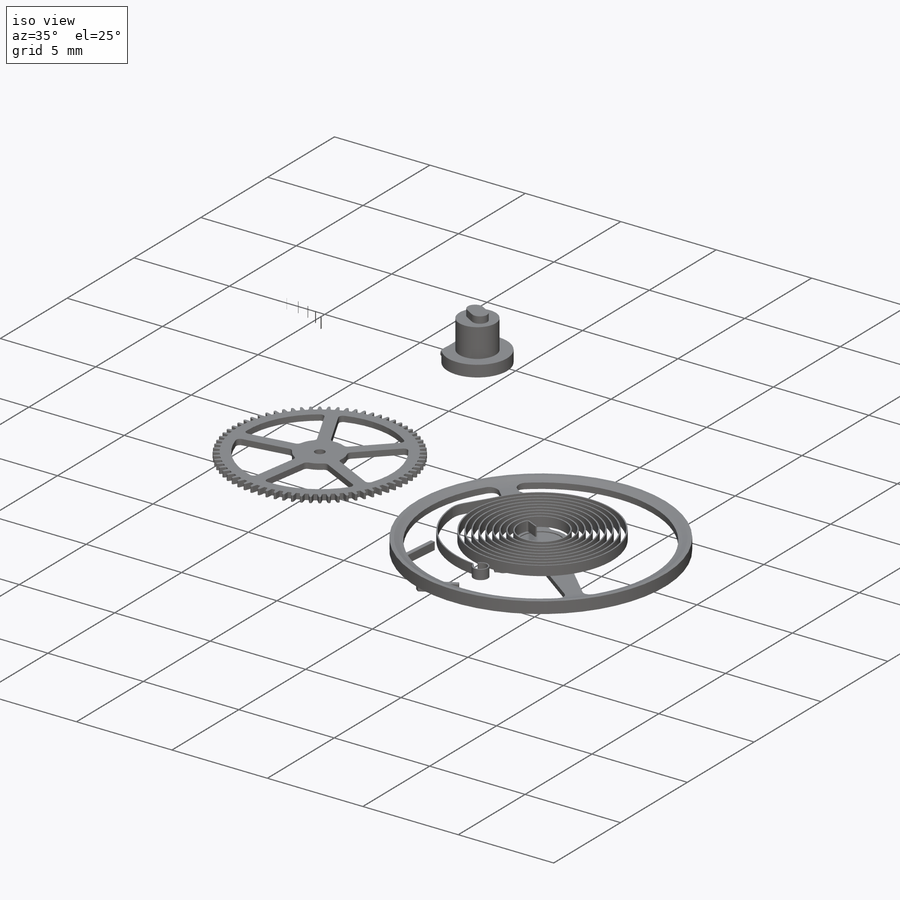
[diagram: iso view]
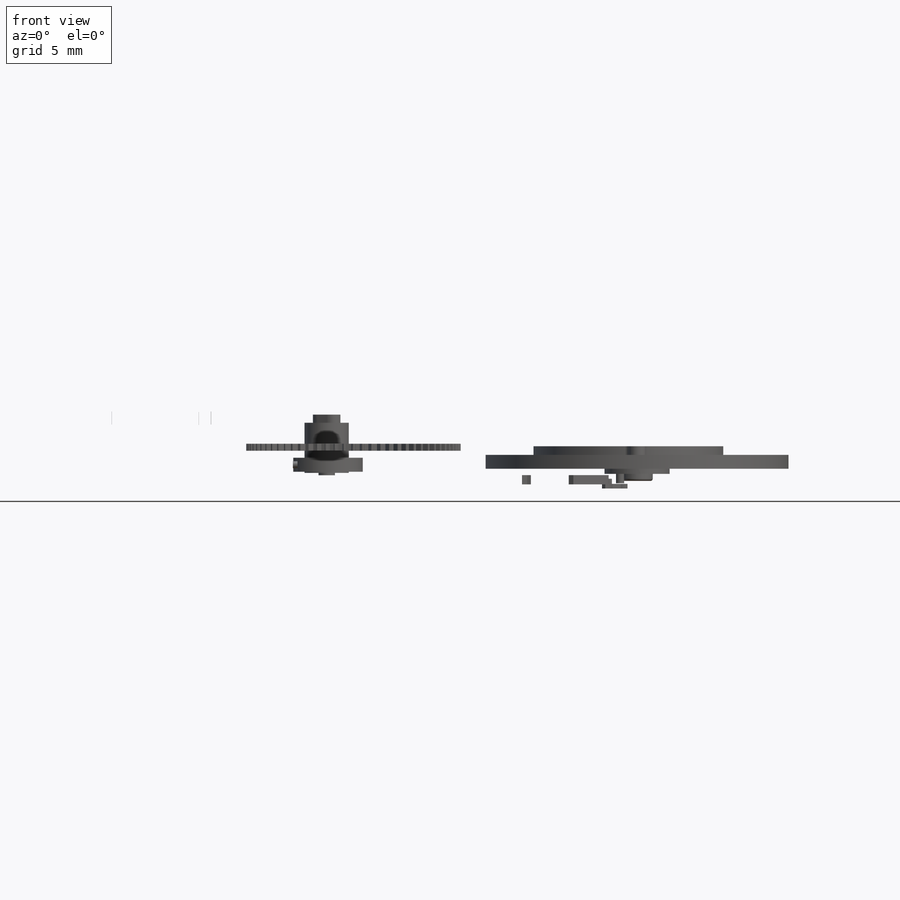
[diagram: front view]
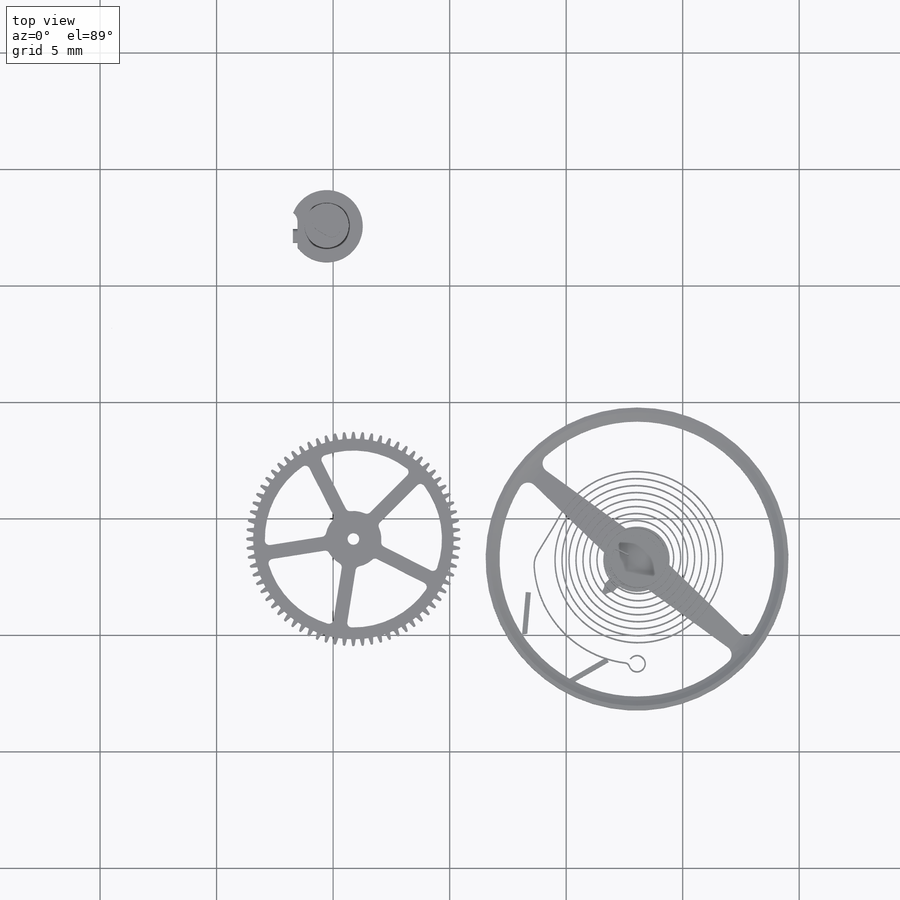
[diagram: top view]
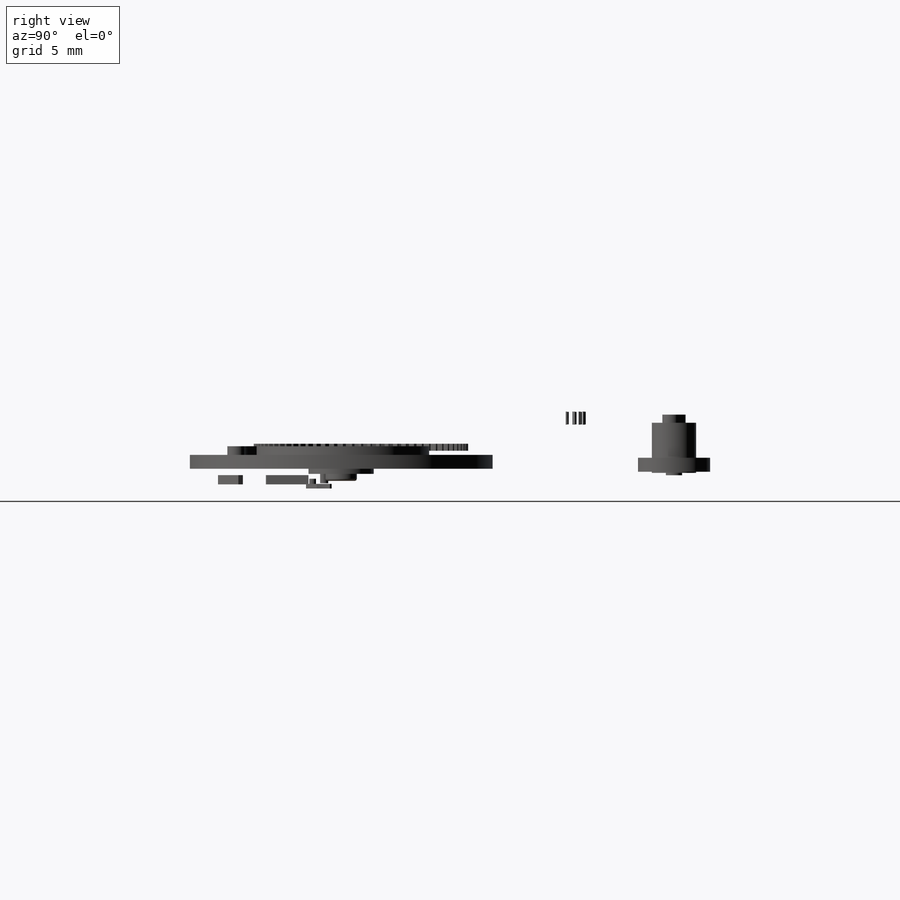
[diagram: right view]
SOLIDWORKS PART (.sldprt)
format: sldprt  version: not decoded by parser v0  size: 23,639,552 bytes
history: native  units: mm
features: sketch x279, extrude x171, fillet x92, cut_extrude x66, plane x30, pattern_circular x25, revolve x14, cut_revolve x11, chamfer x11, helix x4, material x1, boolean_combine x1, surface_op x1 + 3 further entries (+42 scaffold rows collapsed; 31 parser-record rows omitted)
feature tree (782):
  scaffold x42  (default folders/planes/origin — collapsed)
  material  "Material <not specified>"
  plane  "top"  Offset=1.25mm
  plane  "base"  Offset=4.4mm
  plane  "mid"
  sketch  "Sketch17"  dims[D1=36.0mm]
  parser-record x31  (decoder bookkeeping rows leaked as tree rows — omitted from the tree; the rows remain in map.json)
  sketch  "Sketch1"  dims[D1=12.0mm]
  extrude  "Boss-Extrude1"  Depth=0.3mm
  sketch  "Sketch2"  dims[c1.D2=3.0mm c1.D1=0.3mm c2.D2=~0.148279mm c3.D2=~95.83543deg c4.D2=~0.148279mm c5.D2=80.0deg c5.D3=0.1mm]
  extrude  "Boss-Extrude2"  [1 undecoded]
  fillet  "Fillet1"  [1 undecoded]
  pattern_circular  "CirPattern1"  Count=96 Angle=3.75deg
  sketch  "Sketch3"  dims[D1=0.8mm]
  extrude  "Boss-Extrude3"  [1 undecoded]
  sketch  "Sketch12"  dims[D1=0.4mm]
  sketch  "Sketch4"  dims[D1=0.15mm]
  cut_extrude  "Cut-Extrude1"  Depth=0.1mm
  sketch  "Sketch13"  dims[c1.D2=2.6mm c1.D3=1.2mm c2.D2=8.0mm c2.D3=1.8mm c2.D1=~1.117928mm c3.D1=55.0deg c3.D4=0.7mm c3.D5=~1.14671mm c4.D5=~72.860734deg c5.D5=1.4mm c6.D5=72.0deg c6.D2=0.6mm c6.D3=0.3mm c6.D1=2.0]
  cut_extrude  "Cut-Extrude3"  [1 undecoded]
  fillet  "Fillet5"  Radius=0.2mm
  pattern_circular  "CirPattern7"  Count=5 Angle=72deg
  plane  "Plane1"  Offset=0.2mm
  sketch  "Sketch5"  dims[c1.D2=1.6mm c1.D1=~5.131791mm c2.D1=35.0deg c2.D3=0.4mm]
  extrude  "Boss-Extrude4"  Depth=0.1mm
  "Axis2"
  sketch  "Sketch6"  dims[c1.D1=0.3mm c1.D2=0.193mm c2.D2=80.0deg c2.D3=0.1mm c2.D4=1.0mm c3.D4=31.0deg]
  extrude  "Boss-Extrude5"  [1 undecoded]
  fillet  "Fillet2"  [1 undecoded]
  pattern_circular  "CirPattern4"  Count=15 Angle=360deg
  plane  "Plane17"  Offset=0.025mm
  sketch  "Sketch7"  dims[D1=8.6mm]
  extrude  "Boss-Extrude6"  Depth=0.3mm
  sketch  "Sketch8"  dims[c1.D1=0.3mm c1.D2=0.1mm c1.D3=~0.446457mm c2.D3=80.0deg]
  extrude  "Boss-Extrude7"  [1 undecoded]
  fillet  "Fillet3"  [1 undecoded]
  pattern_circular  "CirPattern5"  Count=72 Angle=360deg
  sketch  "Sketch14"  dims[c1.D1=1.7mm c1.D2=2.1mm c2.D1=~1.722959mm c3.D1=45.0deg c3.D4=0.6mm c3.D5=2.1mm c4.D5=72.0deg c4.D2=0.5mm c4.D1=0.4mm c4.D3=2.0]
  cut_extrude  "Cut-Extrude4"  [1 undecoded]
  fillet  "Fillet6"  Radius=0.2mm
  pattern_circular  "CirPattern8"  Count=5 Angle=72deg
  sketch  "Sketch11"  dims[D1=0.5mm]
  cut_extrude  "Cut-Extrude2"  [1 undecoded]
  sketch  "Sketch85"  dims[D1=0.025mm]
  extrude  "Boss-Extrude40"  Depth=0.025mm
  sketch  "Sketch9"  dims[D1=0.4mm]
  extrude  "Boss-Extrude8"  Depth=0.1mm
  sketch  "Sketch10"  dims[c1.D1=~0.049349mm c2.D1=80.0deg c2.D2=0.1mm c2.D3=0.3mm c2.D4=~0.192864mm c3.D4=51.0deg]
  extrude  "Boss-Extrude9"  [1 undecoded]
  fillet  "Fillet4"  [1 undecoded]
  pattern_circular  "CirPattern6"  Count=42 Angle=8.571429deg
  sketch  "Sketch15"  dims[D1=0.025mm]
  extrude  "Boss-Extrude11"  Depth=0.1mm
  sketch  "Sketch16"  dims[D1=0.2mm]
  cut_extrude  "Cut-Extrude5"  Depth=0.2mm
  sketch  "Sketch18"  dims[c1.D1=~2.233312mm c1.D2=1.05mm c2.D1=0.3mm c2.D2=0.4mm c2.D4=0.925mm c3.D4=72.0deg c3.D5=0.4mm c3.D3=2.0]
  cut_extrude  "Cut-Extrude6"  [1 undecoded]
  fillet  "Fillet7"  Radius=0.2mm
  pattern_circular  "CirPattern9"  Count=5 Angle=72deg
  sketch  "Sketch198"  dims[D1=0.1mm]
  extrude  "Boss-Extrude102"  Depth=0.025mm
  plane  "Plane2"  Offset=1mm
  sketch  "Sketch19"  dims[c1.D2=13.0mm c1.D4=~9.064542mm c1.D6=~4.518704mm c1.D9=2.5mm c2.D6=0.4mm c2.D7=0.4mm c2.D1=~9.98035mm c3.D1=50.0deg c3.D3=10.5mm c3.D4=0.6mm c3.D5=4.85mm c4.D5=40.0deg c4.D6=0.3mm c4.D7=1.6mm c4.D8=0.8mm c5.D5=~4.174027mm c6.D5=120.0deg c7.D5=~4.174027mm c8.D5=100.0deg c9.D5=5.25mm c10.D5=135.0deg c11.D5=~4.110614mm c12.D5=135.0deg c12.D10=8.5mm c13.D10=9.0deg c14.D10=~5.413748mm c15.D10=4.0deg]
  extrude  "Boss-Extrude12"  Depth=0.6mm
  "Axis3"
  pattern_circular  "CirPattern12"  Count=2 Angle=180deg
  boolean_combine  "Combine1"
  plane  "Plane3"
  sketch  "Sketch21"  dims[c1.D3=1.5mm c1.D1=0.12mm c1.D2=0.2mm c2.D1=360.0deg]
  plane  "Plane5"  Offset=0.05mm
  sketch  "Sketch22"  dims[D1=2.2mm]
  helix  "Helix/Spiral1"  Pitch=0.3mm
  sketch  "Sketch25"  dims[D1=9.0mm]
  helix  "Helix/Spiral2"  Pitch=0.3mm
  sketch  "Sketch23"  dims[c1.D3=0.7mm c1.D1=~1.909527mm c2.D1=60.0deg c2.D2=0.7mm c3.D1=~0.25848mm c4.D1=70.0deg]
  sketch  "Sketch27"  dims[c1.D3=0.1mm c1.D4=0.3mm c2.D3=0.1mm c2.D4=0.2mm c2.D5=~0.259573mm c3.D5=125.0deg c3.D1=0.0mm c3.D2=0.0mm c4.D1=0.0mm c4.D2=0.0mm]
  surface_op  "Surface-Extrude1"
  fillet  "Fillet38"  Radius=0.1mm
  fillet  "Fillet39"  Radius=0.2mm
  fillet  "Fillet8"  Radius=10mm
  fillet  "Fillet9"  Radius=1mm
  sketch  "Sketch93"  dims[D1=2.05mm]
  cut_extrude  "Cut-Extrude20"  Depth=0.05mm
  sketch  "Sketch26"  dims[c1.D1=2.0mm c1.D3=1.0mm c1.D2=0.15mm c2.D3=0.05mm c2.D1=0.05mm c2.D2=~0.394878mm c3.D2=~0.051129deg c4.D2=0.025mm c4.D1=~0.074421mm c5.D1=90.0deg c6.D1=0.025mm]
  extrude  "Boss-Extrude13"  Depth=0.6mm
  sketch  "Sketch229"
  extrude  "Boss-Extrude123"  Depth=0.15mm
  sketch  "Sketch33"  dims[c1.D1=2.31mm c2.D1=45.0deg]
  plane  "Plane7"
  sketch  "Sketch31"  dims[D1=2.0mm]
  cut_extrude  "Cut-Extrude8"  Depth=0.1mm
  sketch  "Sketch32"  dims[c1.D1=0.5mm c1.D2=0.05mm c1.D3=0.15mm c1.D4=0.6mm c1.D5=0.2mm c1.D6=0.3mm c2.D3=0.2mm c2.D4=0.025mm c2.D5=1.4mm c3.D4=0.025mm c3.D3=0.4mm c3.D1=0.25mm c3.D6=0.025mm c4.D3=0.025mm c4.D4=0.4mm]
  revolve  "Revolve2"  Angle=360deg
  sketch  "Sketch34"  dims[D1=0.4mm D2=1.03mm]
  cut_extrude  "Cut-Extrude9"  Depth=0.1mm
  sketch  "Sketch41"  dims[D3=0.1mm D1=0.3mm D2=0.025mm]
  revolve  "Revolve3"  Angle=360deg
  sketch  "Sketch35"  dims[D1=0.025mm]
  extrude  "Boss-Extrude14"  Depth=0.025mm
  plane  "Plane8"  Offset=0.1mm
  sketch  "Sketch39"  dims[c1.D1=5.6mm c1.D3=3.7mm c1.D2=8.0mm c1.D4=0.24mm c1.D5=0.06mm c1.D6=~1.963736mm c2.D6=35.0deg c2.D7=0.15mm c3.D6=~1.813495mm c4.D6=28.0deg c4.D7=~0.601074mm c5.D7=13.0deg c5.D8=0.9mm c5.D9=~1.897846mm c6.D9=8.0deg c6.D8=0.25mm c7.D8=90.0deg c7.D10=0.8mm c7.D11=~0.775102mm c8.D11=19.0deg c8.D10=0.06mm c9.D10=65.0deg c9.D3=0.75mm c9.D8=0.2mm c10.D8=71.0deg c10.D6=~2.00824mm c11.D6=42.0deg]
  extrude  "Boss-Extrude17"  Depth=0.3mm
  sketch  "Sketch42"  dims[c1.D1=1.0mm c1.D2=~2.922429mm c1.D5=0.5mm c2.D1=0.5mm c2.D2=0.3mm c2.D3=~14.910986mm c3.D3=25.0deg c3.D4=0.3mm c3.D1=0.3mm]
  cut_extrude  "Cut-Extrude10"  [1 undecoded]
  sketch  "Sketch40"  dims[D1=0.0mm]
  extrude  "Boss-Extrude18"  [1 undecoded]
  fillet  "Fillet12"  Radius=1mm
  pattern_circular  "CirPattern13"  Count=14 Angle=360deg
  fillet  "Fillet13"  Radius=0.15mm
  sketch  "Sketch43"  dims[c1.D1=0.22mm c1.D2=~1.835601mm c2.D2=15.0deg c2.D3=~1.589677mm c3.D3=65.0deg c3.D4=1.8mm c3.D5=3.95mm c3.D6=2.15mm]
  sketch  "Sketch44"  dims[c1.D1=~0.275573mm c2.D1=75.0deg c2.D2=~2.232251mm c3.D2=50.0deg c3.D3=4.3mm c3.D4=2.3mm]
  extrude  "Boss-Extrude19"  Depth=0.35mm
  extrude  "Boss-Extrude20"  [1 undecoded]
  sketch  "Sketch36"  dims[c1.D3=0.6mm c1.D8=0.7mm c1.D15=1.8mm c1.D16=0.8mm c2.D3=0.6mm c2.D4=1.3mm c2.D9=1.3mm c2.D10=2.6mm c2.D1=0.5mm c2.D2=0.05mm c3.D4=0.2mm c3.D6=~3.304063mm c4.D6=33.0deg c4.D7=3.8mm c4.D9=~0.57313mm c5.D9=25.0deg c5.D10=0.25mm c5.D11=~0.754803mm c6.D11=65.0deg c6.D12=0.8mm c7.D12=25.0deg c7.D13=0.2mm c7.D14=0.2mm c7.D17=0.2mm c7.D18=1.0mm c7.D5=0.4mm c7.D2=0.2mm c7.D6=0.1mm c7.D19=~0.070905mm c8.D19=38.0deg c8.D2=0.005mm c8.D3=3.9mm c8.D5=~0.676336mm c9.D5=60.0deg c9.D6=0.2mm c9.D7=0.2mm c10.D5=0.2mm]
  extrude  "Boss-Extrude21"  Depth=0.3mm
  sketch  "Sketch37"  dims[c1.D2=1.7mm c1.D7=2.0mm c1.D12=0.5mm c1.D1=0.025mm c1.D3=~0.353553mm c2.D3=120.0deg c2.D4=0.1mm c2.D5=~0.178063mm c3.D5=~1.236526deg c4.D5=0.15mm c4.D6=0.4mm c4.D8=0.3mm c4.D9=~0.450001mm c5.D9=~0.142497deg c6.D9=0.05mm c6.D10=0.4mm c6.D11=0.7mm c6.D12=0.25mm c6.D1=0.0mm]
  extrude  "Boss-Extrude15"  [1 undecoded]
  sketch  "Sketch230"  dims[D1=0.6mm]
  cut_extrude  "Cut-Extrude30"  [1 undecoded]
  fillet  "Fillet14"  Radius=0.5mm
  fillet  "Fillet15"  Radius=0.5mm
  sketch  "Sketch45"  dims[D1=0.3mm D2=0.3mm]
  cut_extrude  "Cut-Extrude11"  Depth=0.1mm
  plane  "Plane9"  Offset=0.025mm
  sketch  "Sketch47"  dims[D1=0.005mm]
  extrude  "Boss-Extrude22"  Depth=0.005mm
  sketch  "Sketch48"  dims[c1.D1=0.5mm c1.D7=0.9mm c1.D2=0.3mm c1.D3=0.5mm c1.D4=~0.217924mm c2.D4=90.0deg c3.D4=0.2mm c3.D5=0.5mm c3.D6=0.1mm c3.D7=1.1mm]
  extrude  "Boss-Extrude23"  Depth=0.2mm
  plane  "Plane10"  Offset=0.2mm
  sketch  "Sketch49"  dims[c1.D2=13.0mm c1.D3=10.0mm c1.D1=~8.64819mm c2.D1=35.0deg c2.D3=9.2mm]
  plane  "Plane11"
  sketch  "Sketch50"  dims[D1=0.9mm D2=0.2mm D3=2.5mm D4=0.25mm D5=5.0mm]
  revolve  "Revolve4"  Angle=360deg
  sketch  "Sketch51"  dims[c1.D3=5.5mm c1.D1=0.5mm c1.D2=0.15mm c2.D3=0.15mm c3.D3=80.0deg]
  extrude  "Boss-Extrude24"  [1 undecoded]
  fillet  "Fillet16"  [1 undecoded]
  pattern_circular  "CirPattern14"  Count=72 Angle=360deg
  sketch  "Sketch52"  dims[c1.D3=4.1mm c1.D2=~8.009058mm c2.D3=3.0mm c2.D1=9.6mm c3.D1=60.0deg c3.D2=0.5mm c3.D3=0.7mm c3.D4=1.0mm c3.D5=1.2mm c4.D4=1.3mm c4.D2=0.7mm c5.D4=9.6mm c6.D4=120.0deg c6.D5=9.6mm c7.D5=120.0deg c7.D6=1.6mm c7.D7=1.1mm]
  cut_extrude  "Cut-Extrude12"  [1 undecoded]
  fillet  "Fillet17"  Radius=0.2mm
  fillet  "Fillet18"  Radius=0.2mm
  sketch  "Sketch54"  dims[D1=0.2mm]
  cut_extrude  "Cut-Extrude13"  Depth=0.1mm
  sketch  "Sketch55"  dims[c1.D1=0.8mm c1.D2=0.4mm c2.D1=0.5mm]
  cut_extrude  "Cut-Extrude14"  [1 undecoded]
  sketch  "Sketch57"  dims[D1=0.0mm D2=0.1mm]
  cut_extrude  "Cut-Extrude15"  Depth=0.1mm
  sketch  "Sketch199"  dims[c1.D1=0.15mm c1.D2=0.02mm c1.D3=~0.712031mm c2.D3=~11.896266deg c2.D1=~0.727659mm c3.D1=12.0deg c3.D2=1.0mm]
  cut_revolve  "Cut-Revolve14"  Angle=360deg
  sketch  "Sketch58"  dims[D1=0.025mm D2=0.15mm D3=0.25mm]
  revolve  "Revolve5"  Angle=360deg
  plane  "Plane12"  Offset=0.1mm
  sketch  "Sketch61"  dims[c1.D2=~11.646613mm c1.D1=0.4mm c2.D2=0.3mm]
  extrude  "Boss-Extrude27"  Depth=0.8mm
  sketch  "Sketch62"  dims[D1=0.0mm]
  extrude  "Boss-Extrude28"  Depth=0.4mm
  sketch  "Sketch200"  dims[c1.D1=~13.378142mm c1.D2=4.0mm c1.D4=17.0mm c1.D5=17.0mm c1.D6=17.0mm c1.D7=~20.43735mm c1.D8=~19.63735mm c2.D1=1.0mm c2.D3=~13.873882mm c3.D3=10.0deg c3.D5=0.5mm c3.D6=0.5mm c3.D7=0.9mm c3.D8=2.0mm c3.D9=~0.346484mm c4.D9=~3.483675deg c5.D9=1.0mm]
  cut_extrude  "Cut-Extrude27"  [1 undecoded]
  plane  "Plane13"
  sketch  "Sketch63"  dims[c1.D1=0.5mm c1.D2=0.15mm c1.D3=~0.505686mm c2.D3=80.0deg]
  extrude  "Boss-Extrude29"  [1 undecoded]
  fillet  "Fillet19"  [1 undecoded]
  pattern_circular  "CirPattern15"  Count=84 Angle=360deg
  sketch  "Sketch202"  dims[c1.D1=~1.673204mm c2.D1=12.0deg c2.D2=1.0mm]
  cut_revolve  "Cut-Revolve15"  Angle=360deg
  sketch  "Sketch64"  dims[D1=0.8mm]
  cut_extrude  "Cut-Extrude16"  Depth=0.1mm
  sketch  "Sketch59"  dims[D1=0.025mm]
  extrude  "Boss-Extrude25"  Depth=0.05mm
  sketch  "Sketch60"  dims[D1=0.05mm]
  extrude  "Boss-Extrude26"  Depth=0.05mm
  sketch  "Sketch65"  dims[D1=0.05mm]
  extrude  "Boss-Extrude30"  Depth=0.1mm
  sketch  "Sketch66"  dims[c1.D1=~3.254767mm c1.D4=0.5mm c2.D1=0.6mm c2.D2=0.3mm c2.D3=0.2mm]
  extrude  "Boss-Extrude31"  Depth=0.6mm
  sketch  "Sketch67"  dims[D3=0.15mm D1=0.5mm D2=0.3mm]
  extrude  "Boss-Extrude32"  Depth=0.2mm
  sketch  "Sketch69"  dims[D1=6.0mm]
  helix  "Helix/Spiral3"  Pitch=0.25mm
  sketch  "Sketch70"  dims[D1=4.0mm]
  helix  "Helix/Spiral4"  Pitch=1.33mm
  plane  "Plane15"
  sketch  "Sketch73"  dims[c1.D1=0.1mm c1.D2=~3.304392mm c2.D2=30.0deg c2.D1=0.1mm c2.D3=0.25mm]
  sketch  "Sketch74"  dims[D1=0.7mm]
  fillet  "Fillet20"  Radius=1mm
  "Thicken2"
  sketch  "Sketch75"  dims[D1=0.005mm]
  cut_extrude  "Cut-Extrude17"  [1 undecoded]
  sketch  "Sketch77"  dims[c1.D1=0.025mm c1.D2=0.2mm c1.D3=~0.174564mm c2.D3=5.0deg c3.D3=0.0mm]
  extrude  "Boss-Extrude33"  Depth=0.7mm
  sketch  "Sketch78"  dims[D1=0.7mm]
  extrude  "Boss-Extrude34"  Depth=0.6mm
  sketch  "Sketch79"  dims[c1.D1=~0.119675mm c2.D1=~112.025517deg c3.D1=~0.157309mm c4.D1=80.0deg c4.D2=0.15mm c4.D3=0.5mm c4.D4=0.8mm c5.D4=26.0deg]
  extrude  "Boss-Extrude35"  [1 undecoded]
  fillet  "Fillet21"  [1 undecoded]
  pattern_circular  "CirPattern16"  Count=11 Angle=360deg
  sketch  "Sketch80"  dims[D1=0.025mm]
  extrude  "Boss-Extrude36"  Depth=0.025mm
  plane  "Plane16"  Offset=0.05mm
  sketch  "Sketch81"  dims[D1=1.1mm]
  extrude  "Boss-Extrude37"  Depth=0.6mm
  sketch  "Sketch82"  dims[c1.D4=1.0mm c1.D1=0.7mm c2.D1=50.0deg c2.D2=0.3mm c2.D3=~0.112242mm c3.D3=80.0deg c3.D4=0.1mm]
  extrude  "Boss-Extrude38"  [1 undecoded]
  fillet  "Fillet22"  [1 undecoded]
  pattern_circular  "CirPattern17"  Count=10 Angle=36deg
  sketch  "Sketch83"  dims[D1=0.025mm]
  extrude  "Boss-Extrude39"  Depth=0.05mm
  sketch  "Sketch86"  dims[c1.D2=6.2mm c1.D3=7.0mm c1.D1=0.4mm c2.D2=0.55mm c3.D2=65.0deg c3.D3=~4.572334mm c4.D3=~184.255716deg c5.D3=1.0mm c6.D3=5.0deg c6.D2=~5.048553mm c7.D2=13.0deg c7.D3=5.5145mm c8.D3=~134.84121deg c9.D3=5.5mm]
  extrude  "Boss-Extrude41"  Depth=0.3mm
  sketch  "Sketch87"  dims[c1.D3=3.4mm c1.D1=3.1mm c2.D1=28.5deg c2.D2=0.3mm c2.D3=~0.044927mm c3.D3=80.0deg c3.D4=0.1mm]
  extrude  "Boss-Extrude42"  [1 undecoded]
  fillet  "Fillet23"  [1 undecoded]
  pattern_circular  "CirPattern18"  Count=65 Angle=360deg
  sketch  "Sketch88"  dims[c1.D2=0.9mm c1.D3=~2.476025mm c1.D1=3.1mm c2.D1=80.0deg c2.D3=0.5mm c2.D5=0.6mm c2.D6=~1.600821mm c3.D6=72.0deg c3.D4=2.0]
  cut_extrude  "Cut-Extrude18"  [1 undecoded]
  fillet  "Fillet24"  Radius=0.2mm
  pattern_circular  "CirPattern19"  Count=5 Angle=72deg
  sketch  "Sketch89"  dims[D1=0.5mm]
  cut_extrude  "Cut-Extrude19"  [1 undecoded]
  plane  "Plane18"  Offset=0.1mm
  sketch  "Sketch90"  dims[D1=0.4mm]
  extrude  "Boss-Extrude43"  Depth=0.05mm
  sketch  "Sketch91"  dims[c1.D1=0.1mm c1.D2=0.1mm c2.D2=80.0deg c2.D3=~0.267096mm c3.D3=14.0deg c3.D4=0.3mm]
  extrude  "Boss-Extrude44"  [1 undecoded]
  fillet  "Fillet25"  [1 undecoded]
  pattern_circular  "CirPattern20"  Count=15 Angle=360deg
  sketch  "Sketch92"  dims[D1=0.025mm]
  extrude  "Boss-Extrude45"  Depth=0.05mm
  sketch  "Sketch94"  dims[D1=6.5mm D2=0.7mm]
  sketch  "Sketch95"  dims[D1=2.2mm D2=0.2mm]
  revolve  "Revolve6"  Angle=360deg
  sketch  "Sketch96"  dims[c1.D2=3.5mm c1.D1=0.5mm c2.D2=0.15mm c2.D3=~0.082903mm c3.D3=80.0deg c3.D4=3.0mm c4.D4=46.5deg]
  extrude  "Boss-Extrude46"  [1 undecoded]
  fillet  "Fillet26"  [1 undecoded]
  pattern_circular  "CirPattern21"  Count=37 Angle=9.72973deg
  sketch  "Sketch203"  dims[c1.D1=~0.872155mm c2.D1=12.0deg c2.D2=1.0mm]
  cut_revolve  "Cut-Revolve16"  Angle=360deg
  sketch  "Sketch103"  dims[D1=2.2mm]
  cut_extrude  "Cut-Extrude21"  Depth=0.1mm
  sketch  "Sketch104"  dims[D2=0.4mm D3=0.5mm D1=0.0mm]
  cut_extrude  "Cut-Extrude22"  Depth=0.1mm
  sketch  "Sketch106"  dims[D1=0.025mm D2=0.15mm D3=0.25mm]
  revolve  "Revolve10"  Angle=360deg
  plane  "Plane33"  Offset=16mm
  sketch  "Sketch204"  dims[D1=4.0mm D2=0.5mm]
  extrude  "Boss-Extrude103"  Depth=0.7mm
  sketch  "Sketch205"  dims[c1.D1=0.15mm c1.D2=1.5mm c2.D2=8.0deg c2.D3=0.15mm c3.D3=80.0deg]
  extrude  "Boss-Extrude104"  [1 undecoded]
  fillet  "Fillet40"  [1 undecoded]
  pattern_circular  "CirPattern22"  Count=20 Angle=18deg
  plane  "Plane34"
  sketch  "Sketch206"  dims[c1.D1=~0.873981mm c2.D1=12.0deg c2.D2=1.0mm c2.D3=0.2mm]
  cut_revolve  "Cut-Revolve17"  Angle=360deg
  sketch  "Sketch207"  dims[D1=1.2mm]
  extrude  "Boss-Extrude105"  Depth=2mm
  plane  "Plane35"  Offset=0.1mm
  sketch  "Sketch208"  dims[c1.D1=7.0mm c1.D4=2.2mm c1.D5=0.5mm c1.D2=3.5mm c2.D2=20.0deg c2.D3=~2.340157mm c3.D3=125.0deg]
  extrude  "Boss-Extrude106"  Depth=0.3mm
  sketch  "Sketch210"  dims[c1.D1=0.4mm c1.D2=~0.046968mm c2.D2=80.0deg c2.D3=0.15mm c2.D4=0.4mm c3.D4=96.0deg]
  extrude  "Boss-Extrude107"  [1 undecoded]
  fillet  "Fillet41"  [1 undecoded]
  pattern_circular  "CirPattern23"  Count=44 Angle=8.181818deg
  sketch  "Sketch213"  dims[D1=1.4mm D2=0.2mm]
  extrude  "Boss-Extrude110"  Depth=0.5mm
  sketch  "Sketch214"  dims[D1=0.0mm]
  cut_extrude  "Cut-Extrude28"  [1 undecoded]
  plane  "Plane36"  Offset=0.1mm
  sketch  "Sketch211"  dims[D1=1.8mm]
  extrude  "Boss-Extrude108"  Depth=0.4mm
  sketch  "Sketch212"  dims[c1.D1=0.15mm c1.D2=0.15mm c2.D2=~254.149713deg c3.D2=0.15mm c4.D2=80.0deg c4.D3=0.4mm]
  extrude  "Boss-Extrude109"  [1 undecoded]
  fillet  "Fillet42"  [1 undecoded]
  pattern_circular  "CirPattern24"  Count=12 Angle=30deg
  sketch  "Sketch215"  dims[D1=0.05mm]
  extrude  "Boss-Extrude111"  Depth=0.3mm
  sketch  "Sketch231"  dims[D1=0.6mm]
  cut_extrude  "Cut-Extrude31"  Depth=0.2mm
  sketch  "Sketch232"  dims[D1=0.025mm]
  extrude  "Boss-Extrude124"  Depth=0.025mm
  sketch  "Sketch216"  dims[c1.D3=1.4mm c1.D1=0.5mm c1.D2=3.5mm c2.D2=45.0deg]
  extrude  "Boss-Extrude112"  Depth=0.1mm
  sketch  "Sketch217"  dims[c1.D1=0.4mm c1.D2=0.15mm c1.D3=~0.118789mm c2.D3=80.0deg c2.D4=0.65mm c3.D4=54.0deg]
  extrude  "Boss-Extrude113"  [1 undecoded]
  fillet  "Fillet43"  [1 undecoded]
  pattern_circular  "CirPattern25"  Count=10 Angle=36deg
  sketch  "Sketch218"  dims[D1=0.5mm]
  extrude  "Boss-Extrude114"  [1 undecoded]
  sketch  "Sketch219"  dims[c1.D1=0.4mm c1.D2=3.3mm c2.D2=135.0deg c2.D3=0.15mm c2.D4=~0.106066mm c3.D4=80.0deg]
  extrude  "Boss-Extrude115"  [1 undecoded]
  fillet  "Fillet44"  [1 undecoded]
  pattern_circular  "CirPattern26"  Count=36 Angle=10deg
  sketch  "Sketch220"  dims[c1.D1=~2.851885mm c1.D4=2.5mm c1.D5=0.8mm c2.D1=0.4mm c2.D2=0.1mm c2.D3=0.5mm c2.D4=~0.122068mm]
  extrude  "Boss-Extrude116"  Depth=0.4mm
  sketch  "Sketch221"  dims[c1.D1=0.4mm c1.D2=0.4mm c2.D2=60.0deg c2.D3=~0.201632mm c3.D3=80.0deg c3.D4=0.15mm]
  extrude  "Boss-Extrude117"  [1 undecoded]
  fillet  "Fillet45"  [1 undecoded]
  pattern_circular  "CirPattern27"  Count=15 Angle=24deg
  sketch  "Sketch223"  dims[c1.D4=1.65mm c1.D1=~0.281675mm c2.D1=66.0deg c2.D2=0.4mm c2.D3=0.15mm c2.D4=~0.06101mm c3.D4=80.0deg]
  extrude  "Boss-Extrude118"  [1 undecoded]
  fillet  "Fillet46"  [1 undecoded]
  pattern_circular  "CirPattern28"  Count=15 Angle=24deg
  sketch  "Sketch240"  dims[D1=1.5mm]
  cut_extrude  "Cut-Extrude33"  Depth=0.1mm
  plane  "Plane37"  Offset=12.75mm
  sketch  "Sketch224"  dims[D1=1.8mm D2=0.8mm]
  extrude  "Boss-Extrude119"  Depth=0.4mm
  sketch  "Sketch225"  dims[c1.D1=0.75mm c2.D1=178.5deg c2.D2=0.15mm c2.D3=~0.149949mm c3.D3=90.0deg c4.D3=~0.149949mm c5.D3=80.0deg c5.D4=0.4mm]
  extrude  "Boss-Extrude120"  [1 undecoded]
  fillet  "Fillet47"  [1 undecoded]
  pattern_circular  "CirPattern29"  Count=12 Angle=360deg
  sketch  "Sketch226"  dims[D1=2.4mm]
  extrude  "Boss-Extrude121"  Depth=1.3mm
  sketch  "Sketch227"  dims[D1=0.3mm]
  cut_extrude  "Cut-Extrude29"  [1 undecoded]
  sketch  "Sketch228"  dims[D1=0.025mm]
  extrude  "Boss-Extrude122"  Depth=0.1mm
  sketch  "Sketch126"  dims[c1.D6=2.5mm c1.D9=2.5mm c1.D1=0.1mm c1.D2=~0.158523mm c2.D2=80.0deg c2.D3=0.15mm c2.D4=~9.384197mm c3.D4=12.0deg c3.D5=13.05mm c3.D7=1.5mm c4.D7=30.0deg c4.D8=1.5mm c5.D8=5.0deg c5.D1=~0.466127mm c6.D1=121.0deg c6.D10=0.6mm c6.D4=13.4mm c7.D4=5.2deg c7.D6=~0.449186mm c8.D6=145.0deg c9.D6=0.5mm c9.D7=1.35mm c9.D8=2.0387mm c10.D8=150.0deg c10.D10=~2.023537mm c11.D10=33.0deg]
  extrude  "Boss-Extrude58"  Depth=0.4mm
  fillet  "Fillet34"  [1 undecoded]
  sketch  "Sketch127"  dims[D1=1.9mm]
  cut_extrude  "Cut-Extrude23"  Depth=0.25mm
  fillet  "Fillet35"  Radius=0.1mm
  plane  "Plane26"
  sketch  "Sketch128"  dims[c1.D1=0.025mm c1.D2=0.15mm c1.D3=0.25mm c2.D1=0.025mm]
  revolve  "Revolve11"  Angle=360deg
  sketch  "Sketch241"  dims[D1=0.025mm]
  extrude  "Boss-Extrude130"  Depth=0.025mm
  sketch  "Sketch242"  dims[D1=0.025mm]
  extrude  "Boss-Extrude131"  Depth=0.05mm
  sketch  "Sketch243"  dims[c1.D1=~35.141092mm c1.D2=~1.269689mm c1.D3=~1.927067mm c1.D4=~2.068081mm c1.D5=1.7mm c1.D9=1.3mm c1.D10=1.0mm c1.D16=4.3mm c1.D18=~2.659234mm c2.D2=0.8mm c2.D4=2.2mm c2.D5=1.4mm c2.D16=2.7mm c2.D22=2.7mm c2.D1=0.1mm c3.D2=0.025mm c3.D3=0.5mm c3.D4=0.7mm c3.D6=17.9mm c4.D6=65.0deg c4.D7=~7.363193mm c5.D7=87.0deg c5.D8=6.0mm c5.D10=0.5mm c5.D11=16.0mm c5.D12=~0.859925mm c6.D12=40.0deg c6.D13=0.8mm c6.D14=~2.452759mm c7.D14=86.0deg c7.D15=0.6mm c7.D18=1.0mm c7.D2=~1.191255mm c8.D2=~1.145061deg c9.D2=0.6mm c9.D14=~2.224277mm c10.D14=20.0deg c10.D5=0.9mm c10.D20=0.7mm c10.D21=1.0mm c11.D21=~137.340416deg c12.D21=1.0mm c13.D21=135.0deg c13.D22=0.5mm c14.D22=62.0deg c14.D17=0.7mm c14.D19=0.7mm]
  extrude  "Boss-Extrude132"  Depth=0.1mm
  sketch  "Sketch244"  dims[c1.D1=2.2mm c1.D4=1.5mm c1.D8=0.71mm c1.D2=1.4mm c1.D3=~0.518742mm c2.D3=150.0deg c3.D3=0.8mm c3.D4=~0.306315mm c4.D4=20.0deg c5.D4=~0.225314mm c6.D4=50.0deg c6.D5=0.8mm c6.D2=0.8mm c6.D6=1.3mm c6.D7=1.2mm c6.D9=0.7mm c6.D10=0.0mm]
  extrude  "Boss-Extrude133"  [1 undecoded]
  sketch  "Sketch246"  dims[c1.D1=0.7mm c1.D2=~16.707941mm c1.D3=14.8mm c1.D4=17.2mm c1.D5=0.5mm c1.D8=~16.002605mm c2.D3=8.4mm c2.D4=17.2mm c2.D2=1.8mm c2.D5=0.4mm c2.D6=6.0mm c2.D8=0.5mm c2.D9=1.2mm c3.D8=1.0mm c3.D10=~0.289183mm c4.D10=40.0deg c4.D11=1.8mm c4.D12=5.1mm c4.D4=0.5mm c4.D7=0.5mm]
  extrude  "Boss-Extrude134"  [1 undecoded]
  sketch  "Sketch247"  dims[c1.D1=0.6mm c1.D4=0.67mm c1.D6=~1.582469mm c2.D4=0.1mm c2.D6=0.08mm c2.D2=0.0mm c2.D3=0.0mm c2.D5=0.0mm]
  extrude  "Boss-Extrude135"  [1 undecoded]
  fillet  "Fillet54"  Radius=1mm
  fillet  "Fillet55"  Radius=0.4mm
  fillet  "Fillet56"  Radius=0.3mm
  fillet  "Fillet58"  Radius=0.1mm
  sketch  "Sketch248"  dims[D1=1.25mm D2=1.5mm]
  cut_extrude  "Cut-Extrude34"  Depth=0.2mm
  sketch  "Sketch249"  dims[c1.D1=~1.080321mm c1.D2=~1.053766mm c1.D3=~1.096009mm c2.D1=0.05mm c2.D2=0.025mm c2.D3=0.025mm]
  extrude  "Boss-Extrude136"  Depth=0.025mm
  sketch  "Sketch250"  dims[D1=0.0mm]
  extrude  "Boss-Extrude137"  [1 undecoded]
  fillet  "Fillet59"  Radius=0.05mm
  fillet  "Fillet60"  Radius=0.05mm
  fillet  "Fillet61"  Radius=0.05mm
  sketch  "Sketch251"  dims[c1.D1=0.7mm c2.D1=40.0deg c2.D2=0.15mm]
  cut_extrude  "Cut-Extrude35"  Depth=0.15mm
  sketch  "Sketch252"  dims[c1.D1=~2.78094mm c1.D3=~9.229975mm c2.D1=0.1mm c2.D2=0.1mm c2.D3=0.1mm c2.D4=0.15mm c3.D3=0.4mm c3.D4=9.3mm c4.D3=0.1mm c4.D5=~0.632473mm c5.D5=112.0deg]
  extrude  "Boss-Extrude138"  [1 undecoded]
  sketch  "Sketch253"  dims[D1=0.05mm]
  extrude  "Boss-Extrude139"  [1 undecoded]
  sketch  "Sketch254"  dims[c1.D4=~1.414576mm c1.D2=1.6mm c1.D1=~2.129815mm c2.D1=13.0deg c2.D2=3.3mm c2.D3=3.3mm c3.D3=80.0deg c3.D4=1.6mm c4.D4=~72.011965deg c5.D4=1.6mm c6.D4=5.0deg c6.D5=5.7mm c7.D4=1.4mm c8.D4=105.0deg c8.D6=0.2mm]
  extrude  "Boss-Extrude140"  [1 undecoded]
  fillet  "Fillet62"  Radius=0.2mm
  sketch  "Sketch255"  dims[c1.D1=~0.399084mm c1.D3=~16.870286mm c1.D5=~8.647408mm c1.D7=~15.945482mm c2.D1=0.05mm c2.D2=0.1mm c2.D3=1.0mm c2.D4=0.2mm c2.D5=0.2mm c2.D6=~1.258171mm c3.D6=133.0deg c3.D7=1.0mm]
  extrude  "Boss-Extrude141"  [1 undecoded]
  sketch  "Sketch256"  dims[D1=0.0mm]
  extrude  "Boss-Extrude142"  [1 undecoded]
  fillet  "Fillet63"  Radius=0.4mm
  fillet  "Fillet64"  Radius=0.4mm
  fillet  "Fillet65"  Radius=0.4mm
  fillet  "Fillet66"  Radius=0.1mm
  sketch  "Sketch257"  dims[c1.D1=~13.54689mm c1.D2=~15.153788mm c1.D3=3.8mm c1.D4=2.2mm c1.D7=1.3mm c1.D8=~2.203669mm c1.D10=0.6mm c1.D9=1.0mm c2.D8=2.0mm c2.D11=2.1mm c2.D3=2.2mm c2.D1=0.2mm c2.D2=1.1mm c2.D5=~6.216108mm c3.D5=30.0deg c3.D6=0.7mm c3.D8=0.5mm c3.D9=0.7mm c3.D3=0.6mm]
  extrude  "Boss-Extrude143"  Depth=0.6mm
  sketch  "Sketch258"  dims[D3=0.8mm D1=2.1mm D2=0.2mm]
  cut_extrude  "Cut-Extrude36"  [1 undecoded]
  sketch  "Sketch259"  dims[c1.D1=~0.09987mm c2.D1=130.0deg c2.D2=0.0mm]
  extrude  "Boss-Extrude144"  [1 undecoded]
  sketch  "Sketch260"  dims[D1=0.025mm]
  extrude  "Boss-Extrude145"  Depth=0.05mm
  plane  "Plane39"
  sketch  "Sketch261"  dims[c1.D1=0.3mm c1.D2=0.1mm c1.D3=~0.406971mm c2.D3=30.0deg c2.D1=0.1mm c2.D4=0.7mm c2.D5=0.35mm]
  cut_revolve  "Cut-Revolve19"  Angle=360deg
  sketch  "Sketch262"  dims[c1.D4=~0.038973mm c1.D3=0.05mm c1.D1=0.025mm c1.D2=0.1mm c2.D3=~0.038973mm c2.D4=0.1mm]
  revolve  "Revolve17"  Angle=360deg
  sketch  "Sketch264"  dims[D1=4.5mm D2=0.0mm]
  extrude  "Boss-Extrude146"  Depth=0.05mm
  fillet  "Fillet67"  Radius=0.4mm
  plane  "Plane40"  Offset=0.05mm
  sketch  "Sketch265"  dims[c1.D6=3.4mm c1.D3=1.2mm c1.D5=2.8mm c2.D6=0.025mm c2.D5=0.025mm c2.D1=0.0mm c2.D2=0.0mm c2.D3=0.0mm c2.D4=0.0mm c3.D5=0.0mm c3.D7=0.0mm]
  extrude  "Boss-Extrude147"  Depth=0.1mm
  sketch  "Sketch266"  dims[D4=2.5mm D1=0.0mm D2=0.0mm D3=0.0mm D5=0.0mm D6=0.0mm D7=0.0mm D8=0.0mm]
  extrude  "Boss-Extrude148"  Depth=0.025mm
  sketch  "Sketch267"  dims[D2=0.2mm D1=0.0mm]
  extrude  "Boss-Extrude149"  Depth=0.3mm
  sketch  "Sketch268"  dims[D1=0.0mm D2=0.0mm]
  extrude  "Boss-Extrude150"  Depth=0.3mm
  sketch  "Sketch270"  dims[D3=0.4mm D1=0.0mm D2=0.0mm D4=0.0mm D5=0.0mm]
  extrude  "Boss-Extrude151"  Depth=0.3mm
  sketch  "Sketch271"  dims[D1=0.0mm D2=0.0mm D3=0.0mm D4=0.0mm D5=0.0mm D6=0.0mm D7=0.0mm D8=0.0mm]
  extrude  "Boss-Extrude152"  Depth=0.5mm
  sketch  "Sketch272"  dims[c1.D1=~1.038139mm c1.D2=~0.583393mm c2.D1=0.05mm c2.D2=0.05mm]
  extrude  "Boss-Extrude153"  Depth=0.025mm
  fillet  "Fillet68"  Radius=0.15mm
  fillet  "Fillet69"  Radius=0.15mm
  sketch  "Sketch273"  dims[c1.D1=1.3mm c2.D1=50.0deg c2.D2=1.3mm c3.D2=30.0deg c3.D5=0.15mm c3.D6=0.15mm c3.D3=0.0mm c3.D4=0.0mm]
  cut_extrude  "Cut-Extrude37"  Depth=0.15mm
  sketch  "Sketch274"  dims[D1=0.0mm D2=0.0mm]
  extrude  "Boss-Extrude154"  Depth=0.2mm
  sketch  "Sketch275"  dims[D1=0.0mm D2=0.0mm]
  extrude  "Boss-Extrude155"  Depth=0.05mm
  sketch  "Sketch276"  dims[D1=0.025mm]
  extrude  "Boss-Extrude156"  Depth=0.2mm
  chamfer  "Chamfer1"  Distance=0.2mm Angle=45deg
  sketch  "Sketch277"  dims[D1=0.025mm]
  extrude  "Boss-Extrude157"  [1 undecoded]
  sketch  "Sketch278"  dims[D1=0.025mm]
  extrude  "Boss-Extrude158"  Depth=0.1mm
  sketch  "Sketch279"  dims[D2=0.05mm D4=0.05mm D1=0.025mm D3=0.05mm]
  revolve  "Revolve18"  Angle=360deg
  sketch  "Sketch280"  dims[D1=0.6mm]
  extrude  "Boss-Extrude159"  Depth=0.1mm
  sketch  "Sketch281"  dims[c1.D1=11.0mm c1.D2=2.1mm c2.D1=1.0mm c2.D3=0.6mm]
  extrude  "Boss-Extrude160"  [1 undecoded]
  sketch  "Sketch282"  dims[c1.D2=16.0mm c1.D3=2.2mm c2.D2=1.0mm c2.D1=0.6mm]
  extrude  "Boss-Extrude161"  [1 undecoded]
  sketch  "Sketch283"  dims[c1.D2=22.0mm c1.D3=2.3mm c2.D2=1.0mm c2.D1=0.6mm]
  extrude  "Boss-Extrude162"  [1 undecoded]
  sketch  "Sketch284"  dims[D1=2.4mm D2=1.0mm D3=0.6mm]
  extrude  "Boss-Extrude163"  [1 undecoded]
  sketch  "Sketch285"  dims[D1=2.5mm D2=1.0mm D3=0.6mm]
  extrude  "Boss-Extrude164"  [1 undecoded]
  sketch  "Sketch286"  dims[D1=2.6mm D3=1.0mm D2=0.6mm]
  extrude  "Boss-Extrude165"  [1 undecoded]
  sketch  "Sketch287"  dims[c1.D1=16.4mm c1.D2=~17.478498mm c1.D3=16.8mm c2.D2=0.2mm c2.D3=0.6mm c2.D4=0.0mm]
  extrude  "Boss-Extrude166"  [1 undecoded]
  sketch  "Sketch292"  dims[D1=0.2mm]
  cut_extrude  "Cut-Extrude40"  Depth=0.1mm
  sketch  "Sketch293"  dims[D1=0.2mm]
  cut_extrude  "Cut-Extrude41"  Depth=0.1mm
  sketch  "Sketch289"  dims[c1.D1=1.2mm c1.D2=~0.607683mm c1.D7=0.45mm c1.D8=1.2mm c1.D9=1.2mm c1.D11=2.5mm c2.D2=0.15mm c2.D4=0.5mm c2.D12=0.6mm c2.D3=0.0mm c2.D5=0.0mm c2.D6=0.0mm c2.D10=0.0mm c2.D13=0.0mm]
  extrude  "Boss-Extrude167"  [1 undecoded]
  sketch  "Sketch290"
  cut_extrude  "Cut-Extrude39"  Depth=0.8mm
  sketch  "Sketch291"  dims[D1=0.0mm]
  extrude  "Boss-Extrude168"  [1 undecoded]
  sketch  "Sketch294"  dims[D1=0.0mm]
  cut_extrude  "Cut-Extrude42"  [1 undecoded]
  sketch  "Sketch296"  dims[D1=0.6mm D2=0.0mm D3=0.0mm]
  extrude  "Boss-Extrude169"  [1 undecoded]
  sketch  "Sketch297"  dims[c1.D3=0.6mm c1.D1=0.0mm c1.D2=0.0mm c2.D1=0.0mm]
  extrude  "Boss-Extrude170"  [1 undecoded]
  sketch  "Sketch298"  dims[D1=0.0mm]
  extrude  "Boss-Extrude171"  [1 undecoded]
  sketch  "Sketch306"  dims[D1=0.2mm]
  cut_extrude  "Cut-Extrude44"  [1 undecoded]
  sketch  "Sketch305"
  sketch  "Sketch300"  dims[c1.D7=12.0mm c1.D1=0.2mm c1.D2=0.2mm c1.D4=0.2mm c1.D5=0.2mm c1.D6=2.2mm c1.D8=18.0mm c2.D8=44.0deg c2.D9=20.4mm c2.D3=0.0mm]
  extrude  "Boss-Extrude172"  [1 undecoded]
  sketch  "Sketch301"  dims[c1.D1=1.85mm c1.D2=7.4mm c1.D3=3.3mm c2.D1=0.2mm c2.D3=0.2mm c2.D4=5.0mm c3.D1=0.2mm c3.D2=0.2mm]
  cut_extrude  "Cut-Extrude43"  [1 undecoded]
  sketch  "Sketch307"  dims[c1.D2=0.5mm c1.D3=9.5mm c2.D2=18.0mm c3.D2=18.0deg c3.D1=0.3mm c3.D4=0.3mm]
  cut_extrude  "Cut-Extrude45"  [1 undecoded]
  sketch  "Sketch308"  dims[D2=1.0mm D1=0.4mm]
  cut_extrude  "Cut-Extrude46"  [1 undecoded]
  sketch  "Sketch309"  dims[c1.D1=0.0mm c1.D2=0.0mm c2.D1=0.0mm c2.D2=0.0mm]
  extrude  "Boss-Extrude173"  [1 undecoded]
  sketch  "Sketch310"  dims[c1.D2=~9.533568mm c1.D1=3.0mm c2.D2=1.0mm]
  cut_extrude  "Cut-Extrude48"  [1 undecoded]
  sketch  "Sketch311"  dims[D1=0.6mm D2=0.0mm D3=0.0mm D4=0.0mm]
  extrude  "Boss-Extrude174"  [1 undecoded]
  sketch  "Sketch312"  dims[D1=0.0mm]
  extrude  "Boss-Extrude175"  [1 undecoded]
  sketch  "Sketch313"  dims[D1=0.0mm]
  extrude  "Boss-Extrude176"  [1 undecoded]
  sketch  "Sketch314"  dims[D1=0.0mm D2=0.0mm]
  extrude  "Boss-Extrude177"  [1 undecoded]
  sketch  "Sketch315"  dims[D1=2.2mm D2=0.0mm D3=0.0mm D4=0.0mm]
  extrude  "Boss-Extrude179"  [1 undecoded]
  sketch  "Sketch317"  dims[D1=0.2mm D2=0.0mm]
  cut_extrude  "Cut-Extrude49"  Depth=0.2mm
  sketch  "Sketch320"  dims[D1=0.0mm D2=0.0mm]
  cut_extrude  "Cut-Extrude50"  [1 undecoded]
  sketch  "Sketch319"  dims[D1=0.8mm D2=0.0mm D3=0.0mm]
  extrude  "Boss-Extrude181"  [1 undecoded]
  sketch  "Sketch318"  dims[c1.D1=2.0mm c1.D7=1.2mm c1.D8=15.0mm c1.D11=1.4mm c1.D12=1.7mm c1.D10=~1.747403mm c1.D16=~2.363814mm c2.D12=1.85mm c2.D20=1.4mm c2.D18=~1.062013mm c2.D19=1.0mm c2.D22=3.0mm c2.D2=~15.367348mm c3.D2=~3.601154deg c3.D3=15.5mm c3.D9=14.0mm c3.D11=0.4mm c3.D12=1.0mm c3.D10=0.4mm c3.D13=15.0mm c3.D14=15.5mm c4.D14=10.0deg c4.D16=1.0mm c4.D12=1.5mm c4.D18=15.0mm c4.D20=0.5mm c5.D18=0.4mm c5.D20=15.0mm c5.D21=14.8763mm c6.D21=11.0deg c6.D20=8.5mm c6.D8=14.5mm c7.D21=15.0mm c7.D2=0.3mm c7.D4=0.3mm c7.D5=0.3mm c7.D6=0.3mm c7.D10=0.0mm c7.D11=0.3mm c7.D15=0.0mm c7.D17=0.0mm c7.D19=0.0mm]
  extrude  "Boss-Extrude180"  [1 undecoded]
  sketch  "Sketch322"  dims[c1.D2=0.75mm c1.D4=1.2mm c1.D8=0.5mm c1.D6=~0.527848mm c2.D6=160.0deg c2.D1=0.0mm c2.D3=0.0mm c2.D5=0.0mm c3.D3=0.0mm c3.D5=0.0mm c3.D7=0.0mm c3.D9=0.0mm]
  extrude  "Boss-Extrude182"  [1 undecoded]
  sketch  "Sketch323"  dims[D1=0.0mm D2=0.0mm D3=0.0mm D4=0.0mm D5=0.0mm]
  cut_extrude  "Cut-Extrude51"  Depth=0.8mm
  sketch  "Sketch324"  dims[D1=0.0mm D2=0.0mm]
  cut_extrude  "Cut-Extrude52"  Depth=0.6mm
  fillet  "Fillet71"  Radius=0.5mm
  sketch  "Sketch325"  dims[c1.D1=1.2mm c1.D7=0.9mm c1.D8=0.8mm c2.D1=0.8mm c2.D2=7.4mm c2.D3=18.0mm c3.D3=152.0deg c3.D4=18.0mm c4.D4=164.0deg c4.D5=16.25mm c4.D6=1.2mm c4.D7=0.4mm]
  extrude  "Boss-Extrude183"  [1 undecoded]
  sketch  "Sketch326"  dims[c1.D5=0.65mm c1.D6=0.65mm c1.D7=0.95mm c1.D9=0.3mm c1.D10=0.5mm c2.D9=0.35mm c2.D1=0.0mm c2.D2=0.0mm c2.D3=0.0mm c2.D4=0.0mm c2.D8=0.0mm c2.D7=0.0mm c2.D11=0.0mm]
  extrude  "Boss-Extrude184"  [1 undecoded]
  sketch  "Sketch329"  dims[D1=0.0mm D2=0.0mm]
  extrude  "Boss-Extrude186"  [1 undecoded]
  sketch  "Sketch330"  dims[D1=0.0mm D2=0.0mm]
  extrude  "Boss-Extrude187"  [1 undecoded]
  sketch  "Sketch331"  dims[c1.D2=2.3mm c1.D4=3.3mm c1.D1=~5.512799mm c2.D1=~179.909999deg c3.D1=0.3mm c3.D3=0.0mm]
  extrude  "Boss-Extrude188"  [1 undecoded]
  sketch  "Sketch332"  dims[D1=0.0mm]
  extrude  "Boss-Extrude189"  [1 undecoded]
  sketch  "Sketch373"  dims[D1=0.55mm]
  extrude  "Boss-Extrude215"  [1 undecoded]
  sketch  "Sketch374"  dims[D1=0.1mm]
  cut_extrude  "Cut-Extrude70"  [1 undecoded]
  fillet  "Fillet72"  Radius=0.5mm
  sketch  "Sketch327"  dims[D1=0.0mm]
  extrude  "Boss-Extrude185"  [1 undecoded]
  sketch  "Sketch328"  dims[D1=0.0mm D2=0.0mm D3=0.0mm D4=0.0mm D5=0.0mm D6=0.0mm]
  cut_extrude  "Cut-Extrude53"  [1 undecoded]
  fillet  "Fillet76"  Radius=0.2mm
  fillet  "Fillet73"  Radius=0.5mm
  fillet  "Fillet74"  Radius=1.1mm
  fillet  "Fillet75"  Radius=0.4mm
  sketch  "Sketch333"  dims[D1=1.2mm D2=1.4mm]
  cut_extrude  "Cut-Extrude54"  [1 undecoded]
  sketch  "Sketch334"  dims[D1=0.7mm D2=1.0mm D3=0.5mm D4=0.8mm]
  cut_extrude  "Cut-Extrude55"  [1 undecoded]
  sketch  "Sketch335"  dims[D1=0.05mm]
  extrude  "Boss-Extrude190"  [1 undecoded]
  chamfer  "Chamfer3"  Distance=0.6mm Angle=45deg
  sketch  "Sketch336"  dims[D1=0.05mm]
  extrude  "Boss-Extrude191"  Depth=0.1mm
  sketch  "Sketch337"  dims[D1=0.05mm]
  extrude  "Boss-Extrude192"  Depth=0.1mm
  sketch  "Sketch338"  dims[c1.D1=~1.094762mm c1.D2=~1.088289mm c2.D1=0.025mm c2.D2=0.025mm]
  extrude  "Boss-Extrude193"  Depth=0.025mm
  sketch  "Sketch339"
  extrude  "Boss-Extrude194"  Depth=0.025mm
  fillet  "Fillet77"  Radius=0.05mm
  fillet  "Fillet78"  Radius=0.05mm
  sketch  "Sketch340"  dims[D1=0.05mm]
  extrude  "Boss-Extrude195"  Depth=0.025mm
  plane  "Plane41"  Offset=0.025mm
  fillet  "Fillet111"  [1 undecoded]
  fillet  "Fillet112"  [1 undecoded]
  sketch  "Sketch341"  dims[D2=0.025mm D1=0.025mm]
  extrude  "Boss-Extrude196"  Depth=0.2mm
  sketch  "Sketch342"  dims[c1.D1=~1.546552mm c1.D2=~0.786196mm c2.D1=0.025mm c2.D2=0.025mm]
  extrude  "Boss-Extrude197"  Depth=0.025mm
  fillet  "Fillet79"  Radius=0.05mm
  fillet  "Fillet80"  Radius=0.05mm
  fillet  "Fillet81"  Radius=0.05mm
  fillet  "Fillet82"  Radius=0.05mm
  fillet  "Fillet83"  Radius=0.05mm
  fillet  "Fillet84"  Radius=0.05mm
  fillet  "Fillet85"  Radius=0.05mm
  fillet  "Fillet86"  Radius=0.05mm
  fillet  "Fillet87"  Radius=0.05mm
  fillet  "Fillet88"  Radius=0.05mm
  fillet  "Fillet89"  Radius=0.05mm
  fillet  "Fillet90"  Radius=0.05mm
  fillet  "Fillet91"  Radius=0.05mm
  sketch  "Sketch343"  dims[c1.D2=1.2mm c1.D1=~13.978022mm c2.D1=17.0deg c2.D2=16.3mm c2.D3=6.6mm c2.D4=0.3mm]
  cut_extrude  "Cut-Extrude56"  Depth=0.2mm
  sketch  "Sketch344"
  cut_extrude  "Cut-Extrude57"  [1 undecoded]
  sketch  "Sketch345"  dims[D1=0.025mm]
  extrude  "Boss-Extrude198"  Depth=0.025mm
  chamfer  "Chamfer4"  Distance=0.15mm Angle=45deg
  chamfer  "Chamfer5"  Distance=0.15mm Angle=45deg
  chamfer  "Chamfer6"  Distance=0.1mm Angle=45deg
  chamfer  "Chamfer7"  Distance=0.1mm Angle=45deg
  fillet  "Fillet92"  Radius=0.05mm
  sketch  "Sketch107"  dims[D1=2.0mm D2=0.6mm]
  extrude  "Boss-Extrude48"  Depth=0.5mm
  sketch  "Sketch108"
  plane  "Plane24"
  sketch  "Sketch109"  dims[c1.D1=0.15mm c1.D2=0.1mm c1.D3=0.2mm c1.D4=1.0mm c2.D1=0.2mm c2.D2=0.2mm c2.D3=~0.098574mm c3.D3=55.0deg]
  cut_revolve  "Cut-Revolve1"  Angle=360deg
  sketch  "Sketch110"
  cut_revolve  "Cut-Revolve2"  Angle=360deg
  sketch  "Sketch111"
  plane  "Plane25"
  sketch  "Sketch112"
  cut_revolve  "Cut-Revolve3"  Angle=360deg
  sketch  "Sketch233"
  cut_revolve  "Cut-Revolve18"  Angle=360deg
  sketch  "Sketch120"  dims[D1=2.5mm D2=0.025mm]
  extrude  "Boss-Extrude55"  Depth=0.5mm
  sketch  "Sketch121"
  cut_revolve  "Cut-Revolve4"  Angle=360deg
  sketch  "Sketch113"  dims[D1=0.025mm]
  extrude  "Boss-Extrude49"  [1 undecoded]
  sketch  "Sketch114"  dims[D1=0.025mm]
  extrude  "Boss-Extrude50"  [1 undecoded]
  sketch  "Sketch115"
  extrude  "Boss-Extrude51"  [1 undecoded]
  sketch  "Sketch116"  dims[D1=0.9mm]
  extrude  "Boss-Extrude52"  Depth=0.025mm
  sketch  "Sketch117"
  extrude  "Boss-Extrude53"  Depth=0.025mm
  sketch  "Sketch118"
  extrude  "Boss-Extrude54"  Depth=0.025mm
  sketch  "Sketch122"  dims[D1=1.4mm]
  extrude  "Boss-Extrude56"  Depth=0.025mm
  sketch  "Sketch234"  dims[D1=0.025mm]
  extrude  "Boss-Extrude125"  [1 undecoded]
  sketch  "Sketch235"  dims[D1=0.2mm]
  extrude  "Boss-Extrude126"  Depth=0.025mm
  sketch  "Sketch346"  dims[D1=0.6mm]
  extrude  "Boss-Extrude199"  Depth=0.05mm
  sketch  "Sketch347"  dims[c1.D3=8.0mm c1.D6=11.3mm c1.D8=0.8mm c1.D2=~2.816518mm c2.D2=160.0deg c2.D3=18.0mm c3.D3=25.0deg c4.D3=1.0mm c4.D4=18.0mm c5.D4=45.0deg c5.D5=3.5mm c5.D2=~2.571029mm c6.D2=160.0deg c6.D4=7.0mm c6.D1=0.0mm c6.D5=0.0mm c6.D6=0.0mm c6.D7=0.6mm]
  extrude  "Boss-Extrude200"  [1 undecoded]
  sketch  "Sketch348"
  cut_extrude  "Cut-Extrude58"  Depth=0.15mm
  sketch  "Sketch349"  dims[c1.D1=2.0mm c1.D2=~1.550144mm c1.D4=2.0mm c1.D5=0.8mm c2.D2=0.5mm c2.D3=3.2mm]
  cut_extrude  "Cut-Extrude59"  [1 undecoded]
  sketch  "Sketch350"  dims[D1=0.15mm]
  cut_extrude  "Cut-Extrude60"  [1 undecoded]
  sketch  "Sketch351"
  extrude  "Boss-Extrude201"  [1 undecoded]
  sketch  "Sketch352"  dims[D1=0.4mm]
  extrude  "Boss-Extrude203"  [1 undecoded]
  sketch  "Sketch353"  dims[c1.D1=~3.147411mm c1.D2=~3.147411mm c1.D3=0.15mm c2.D1=0.2mm c2.D2=0.025mm c2.D4=5.6mm c2.D5=0.8mm]
  extrude  "Boss-Extrude204"  Depth=0.05mm
  sketch  "Sketch354"  dims[D1=0.025mm]
  extrude  "Boss-Extrude205"  Depth=0.25mm
  sketch  "Sketch355"  dims[c1.D1=0.4mm c1.D5=0.5mm c1.D6=0.4mm c1.D9=4.6mm c1.D2=~4.136066mm c2.D2=11.0deg c2.D3=4.1mm c2.D4=0.7mm c2.D6=0.025mm c2.D7=0.5mm c2.D8=~0.248379mm c3.D8=~179.438774deg c4.D8=0.025mm c4.D7=0.2mm c4.D5=~0.089108mm]
  extrude  "Boss-Extrude206"  [1 undecoded]
  fillet  "Fillet93"  Radius=0.3mm
  sketch  "Sketch357"  dims[c1.D1=~0.495207mm c1.D2=5.1mm c2.D1=1.2mm]
  extrude  "Boss-Extrude207"  Depth=0.5mm
  sketch  "Sketch358"  dims[D1=0.1mm]
  cut_extrude  "Cut-Extrude61"  Depth=0.25mm
  sketch  "Sketch359"  dims[D1=0.025mm]
  extrude  "Boss-Extrude208"  Depth=0.05mm
  fillet  "Fillet94"  Radius=0.6mm
  sketch  "Sketch360"  dims[D2=1.2mm D3=0.75mm D1=0.0mm D4=0.0mm]
  extrude  "Boss-Extrude209"  [1 undecoded]
  chamfer  "Chamfer8"  Distance=0.15mm Angle=45deg
  sketch  "Sketch361"  dims[c1.D9=0.7mm c1.D10=5.0mm c1.D12=8.0mm c1.D13=18.1mm c1.D16=0.65mm c1.D15=11.5mm c1.D17=11.0mm c1.D19=1.3mm c1.D2=~2.811256mm c1.D8=0.4mm c1.D6=11.5mm c1.D20=~2.110685mm c1.D21=9.0mm c2.D17=11.6mm c2.D18=~8.954653mm c2.D23=0.8mm c2.D13=0.6mm c2.D15=0.6mm c3.D17=0.6mm c3.D18=1.0mm c3.D19=0.3mm c3.D2=0.3mm c3.D6=0.6mm c3.D20=0.6mm c4.D17=4.8mm c4.D18=0.6mm c4.D22=~3.066425mm c5.D22=135.0deg c5.D1=0.4mm c5.D2=0.3mm c5.D3=0.4mm c5.D4=0.0mm c5.D5=0.0mm c5.D6=0.0mm c5.D7=0.0mm c6.D2=0.0mm c6.D8=0.0mm c6.D11=0.0mm c6.D13=0.3mm c6.D14=0.3mm]
  extrude  "Boss-Extrude210"  Depth=0.2mm
  sketch  "Sketch365"  dims[c1.D1=1.8mm c1.D2=1.0mm c1.D3=1.3mm c1.D4=0.6mm c2.D3=0.3mm]
  extrude  "Boss-Extrude212"  [1 undecoded]
  sketch  "Sketch362"  dims[D1=0.0mm D2=0.0mm]
  cut_extrude  "Cut-Extrude63"  Depth=0.6mm
  sketch  "Sketch363"  dims[D1=0.1mm]
  cut_extrude  "Cut-Extrude64"  Depth=0.05mm
  fillet  "Fillet95"  Radius=0.5mm
  fillet  "Fillet96"  Radius=0.2mm
  fillet  "Fillet97"  Radius=0.4mm
  sketch  "Sketch364"  dims[D5=0.6mm D6=0.5mm D7=0.7mm D1=0.0mm D2=0.0mm D3=0.0mm D4=0.0mm]
  extrude  "Boss-Extrude211"  [1 undecoded]
  sketch  "Sketch366"
  cut_extrude  "Cut-Extrude65"  Depth=0.25mm
  sketch  "Sketch367"  dims[c1.D1=2.5mm c1.D2=~9.124529mm c1.D3=~18.300679mm c1.D4=~8.913283mm c1.D5=~8.746374mm c1.D6=~4.928622mm c2.D1=2.25mm c2.D7=~4.988803mm c2.D8=~3.532347mm c2.D15=~3.572989mm c3.D1=1.0mm c3.D2=0.2mm c3.D3=0.2mm c3.D4=1.6mm c3.D5=0.6mm c3.D6=0.6mm c4.D1=0.8mm c4.D7=0.2mm c4.D11=2.0mm c4.D12=0.6mm c4.D15=0.3mm c4.D8=0.0mm c4.D9=0.0mm c4.D10=0.0mm c4.D13=0.0mm c4.D14=0.0mm c5.D7=0.0mm]
  extrude  "Boss-Extrude213"  [1 undecoded]
  sketch  "Sketch368"  dims[c1.D1=~14.399998mm c1.D4=~6.106358mm c2.D1=1.0mm c2.D4=0.2mm c2.D2=0.0mm c2.D3=0.0mm]
  cut_extrude  "Cut-Extrude66"  Depth=0.4mm
  sketch  "Sketch369"  dims[c1.D1=0.0mm c1.D2=0.0mm c1.D3=0.0mm c1.D4=0.0mm c2.D2=0.0mm c2.D3=0.0mm c2.D4=0.0mm]
  cut_extrude  "Cut-Extrude67"  [1 undecoded]
  sketch  "Sketch370"  dims[c1.D1=~0.908726mm c2.D1=22.0deg]
  cut_extrude  "Cut-Extrude68"  Depth=0.5mm
  sketch  "Sketch371"  dims[c1.D5=0.4mm c1.D6=0.3mm c2.D5=0.4mm c2.D7=~0.834654mm c3.D7=43.0deg c3.D1=0.0mm c3.D2=0.0mm c3.D3=0.0mm c3.D4=0.0mm]
  extrude  "Boss-Extrude214"  [1 undecoded]
  sketch  "Sketch372"
  cut_extrude  "Cut-Extrude69"  [1 undecoded]
  fillet  "Fillet98"  Radius=0.5mm
  fillet  "Fillet100"  Radius=0.2mm
  sketch  "Sketch375"  dims[c1.D1=4.0mm c1.D2=~4.219635mm c1.D3=~4.219635mm c1.D8=0.6mm c1.D10=0.4mm c2.D2=0.6mm c2.D3=0.3mm c2.D4=0.0mm c2.D5=0.0mm c2.D6=0.0mm c2.D7=0.0mm c2.D9=0.0mm]
  extrude  "Boss-Extrude216"  [1 undecoded]
  fillet  "Fillet101"  Radius=0.5mm
  fillet  "Fillet102"  Radius=0.2mm
  sketch  "Sketch376"  dims[D1=0.2mm]
  cut_extrude  "Cut-Extrude71"  [1 undecoded]
  sketch  "Sketch378"  dims[c1.D1=0.1mm c1.D2=0.1mm c1.D3=2.1mm c1.D4=0.1mm c1.D5=0.1mm c1.D6=0.1mm c1.D7=0.1mm c1.D8=0.1mm c1.D9=0.1mm c1.D10=0.1mm c1.D11=1.0mm c2.D8=0.1mm]
  cut_revolve  "Cut-Revolve20"  Angle=90deg
  sketch  "Sketch381"  dims[D1=0.0mm D2=0.0mm]
  cut_extrude  "Cut-Extrude73"  [1 undecoded]
  sketch  "Sketch382"
  extrude  "Boss-Extrude217"  [1 undecoded]
  sketch  "Sketch383"  dims[D2=1.4mm D1=0.0mm]
  extrude  "Boss-Extrude218"  [1 undecoded]
  fillet  "Fillet103"  Radius=0.5mm
  chamfer  "Chamfer9"  Distance=0.15mm Angle=45deg
  chamfer  "Chamfer10"  Distance=0.15mm Angle=45deg
  chamfer  "Chamfer11"  Distance=0.15mm Angle=45deg
  sketch  "Sketch137"  dims[c1.D3=0.05mm c1.D1=0.025mm c1.D2=0.1mm c2.D1=0.1mm c2.D2=0.025mm c2.D4=0.1mm c2.D5=0.2mm c2.D6=0.25mm c3.D1=0.1mm]
  revolve  "Revolve12"  Angle=360deg
  sketch  "Sketch138"  dims[D3=0.05mm D1=0.025mm D2=0.1mm]
  revolve  "Revolve13"  Angle=360deg
  sketch  "Sketch139"  dims[D3=0.05mm D1=0.025mm D2=0.1mm D4=0.1mm D5=0.2mm D6=0.25mm]
  revolve  "Revolve14"  Angle=360deg
  sketch  "Sketch140"  dims[c1.D3=0.08mm c1.D4=0.05mm c1.D5=0.05mm c1.D1=0.025mm c1.D2=0.1mm c2.D3=0.2mm c2.D5=0.1mm c2.D6=0.25mm]
  revolve  "Revolve15"  Angle=360deg
  sketch  "Sketch141"  dims[D2=0.05mm D1=0.025mm D3=0.1mm D4=0.1mm D5=0.2mm D6=0.25mm]
  revolve  "Revolve16"  Angle=360deg
  sketch  "Sketch384"  dims[D1=0.05mm]
  extrude  "Boss-Extrude219"  Depth=0.1mm
  sketch  "Sketch385"  dims[D1=0.025mm]
  extrude  "Boss-Extrude220"  Depth=0.025mm
  sketch  "Sketch386"  dims[D1=1.0mm]
  extrude  "Boss-Extrude221"  Depth=0.1mm
  sketch  "Sketch387"  dims[D1=0.2mm]
  extrude  "Boss-Extrude222"  Depth=0.05mm
  plane  "Plane42"  Offset=0.05mm
  sketch  "Sketch388"  dims[c1.D1=~1.560919mm c1.D2=~1.342842mm c1.D3=~1.258972mm c1.D4=~1.29574mm c1.D5=~1.266932mm c1.D6=~1.477725mm c2.D1=0.05mm c2.D2=0.05mm c2.D3=0.05mm c2.D4=0.05mm c2.D5=0.05mm c2.D6=0.05mm c2.D7=~1.508352mm c3.D7=50.0deg c3.D8=~1.872166mm c4.D8=100.0deg c4.D9=0.95mm c5.D9=115.0deg c5.D10=~1.602138mm c6.D10=35.0deg c6.D11=0.95mm c7.D11=115.0deg c7.D12=~1.830712mm c8.D12=105.0deg]
  extrude  "Boss-Extrude223"  Depth=0.025mm
  fillet  "Fillet104"  Radius=0.05mm
  fillet  "Fillet105"  Radius=0.05mm
  fillet  "Fillet106"  Radius=0.05mm
  fillet  "Fillet107"  Radius=0.05mm
  fillet  "Fillet108"  Radius=0.05mm
  fillet  "Fillet109"  Radius=0.05mm
  sketch  "Sketch389"  dims[D1=0.25mm]
  cut_extrude  "Cut-Extrude74"  Depth=0.15mm
  sketch  "Sketch390"  dims[c1.D1=1.075mm c2.D1=10.0deg c2.D2=1.85mm c3.D2=35.0deg c3.D3=2.15mm c4.D3=110.0deg c4.D4=0.2mm]
  cut_extrude  "Cut-Extrude75"  Depth=1mm
  fillet  "Fillet110"  Radius=0.1mm
  chamfer  "Chamfer12"  Distance=0.05mm Angle=45deg
decode coverage: 517 of 675 modeling features carry decoded parameters; 3 rows unclassified (native names shown)
note: ~ marks probable driven/reference dimensions
note: 137 parameter values undecoded
summary: no parameter record found for 137 features
note: suppression state not decoded; provenance and decode notes live in map.json
